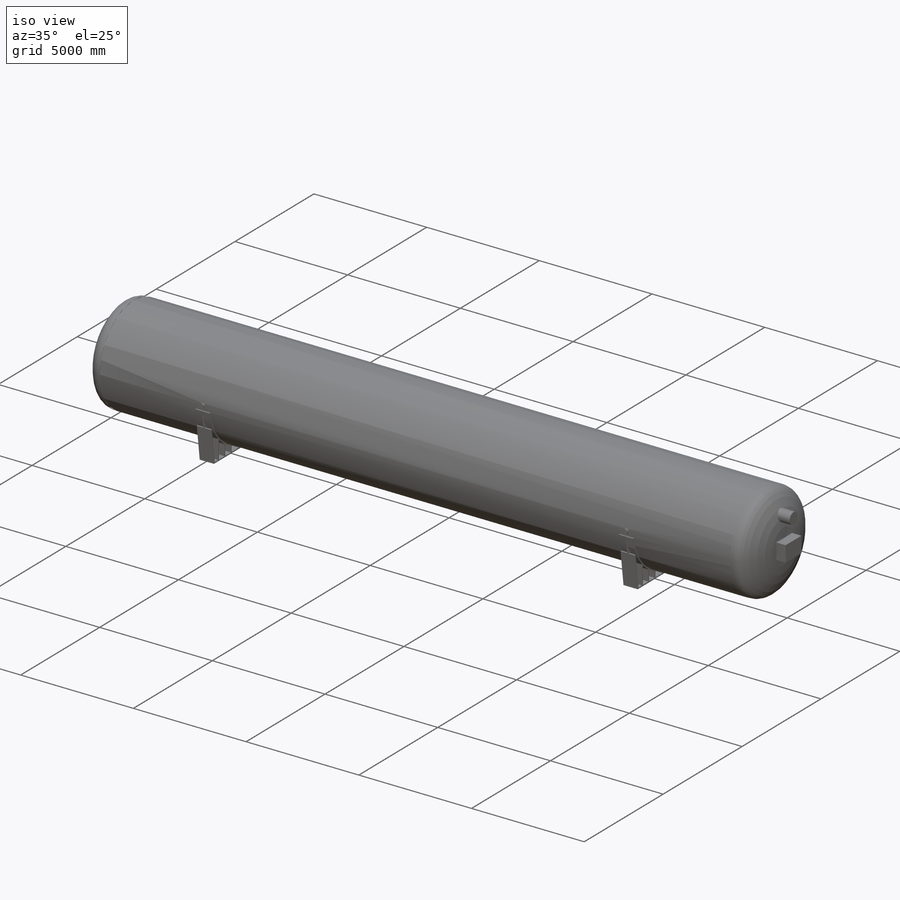
[diagram: iso view]
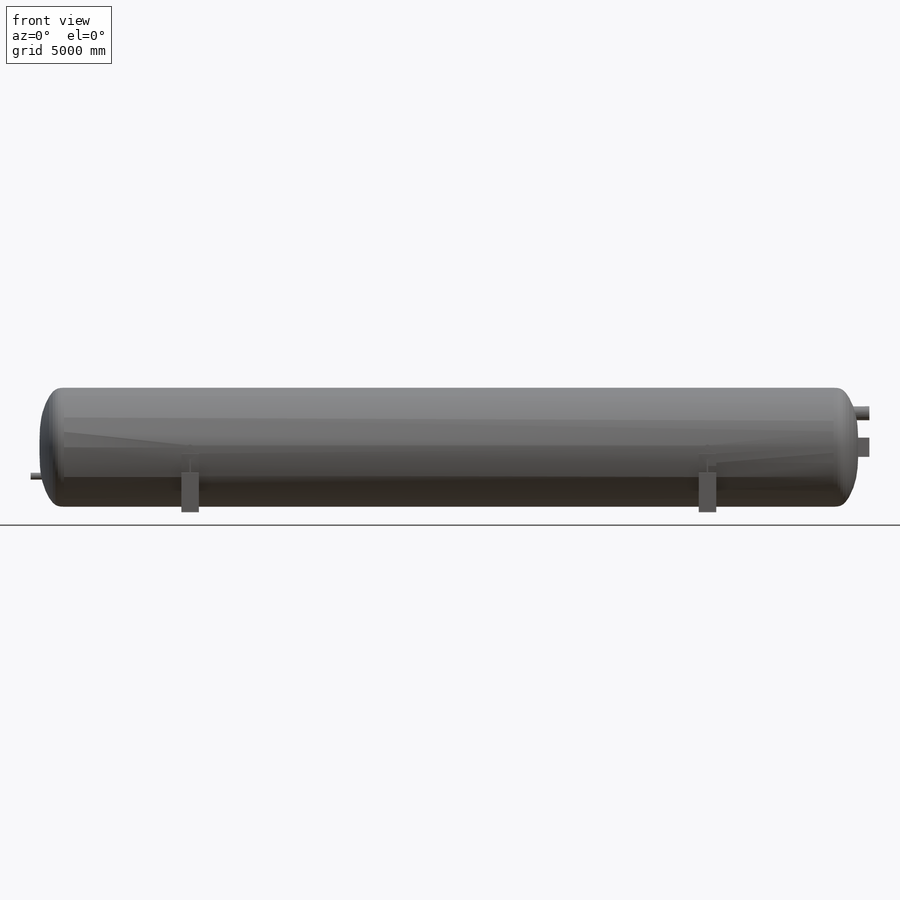
[diagram: front view]
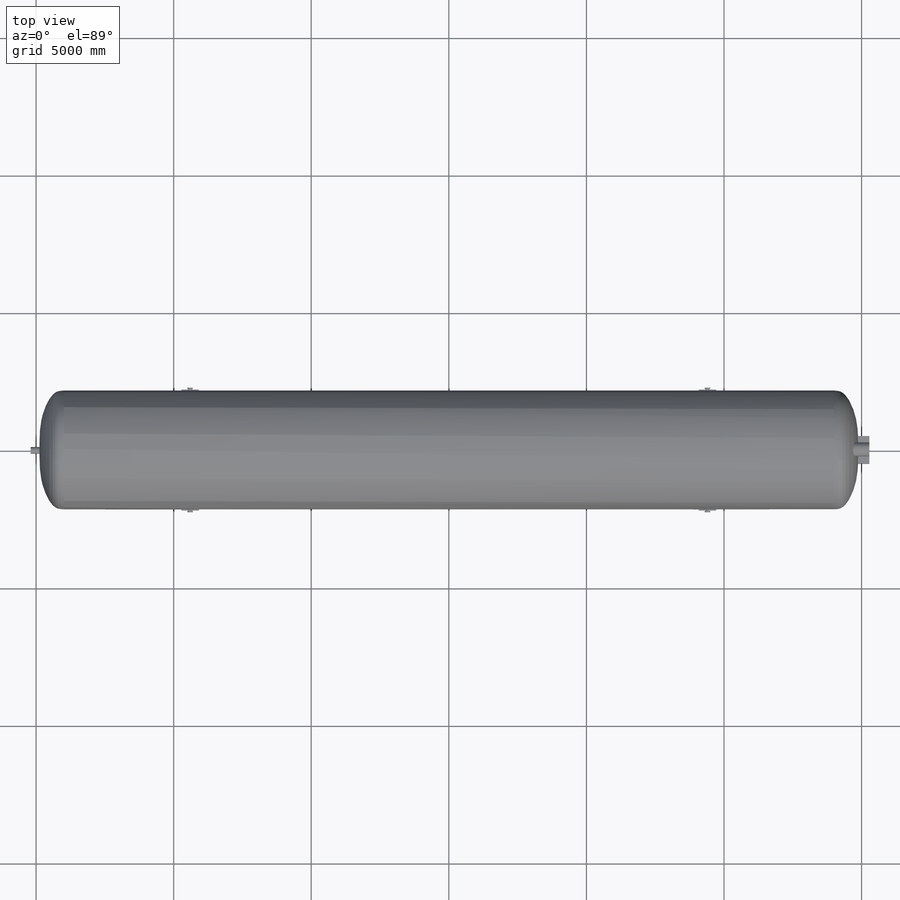
[diagram: top view]
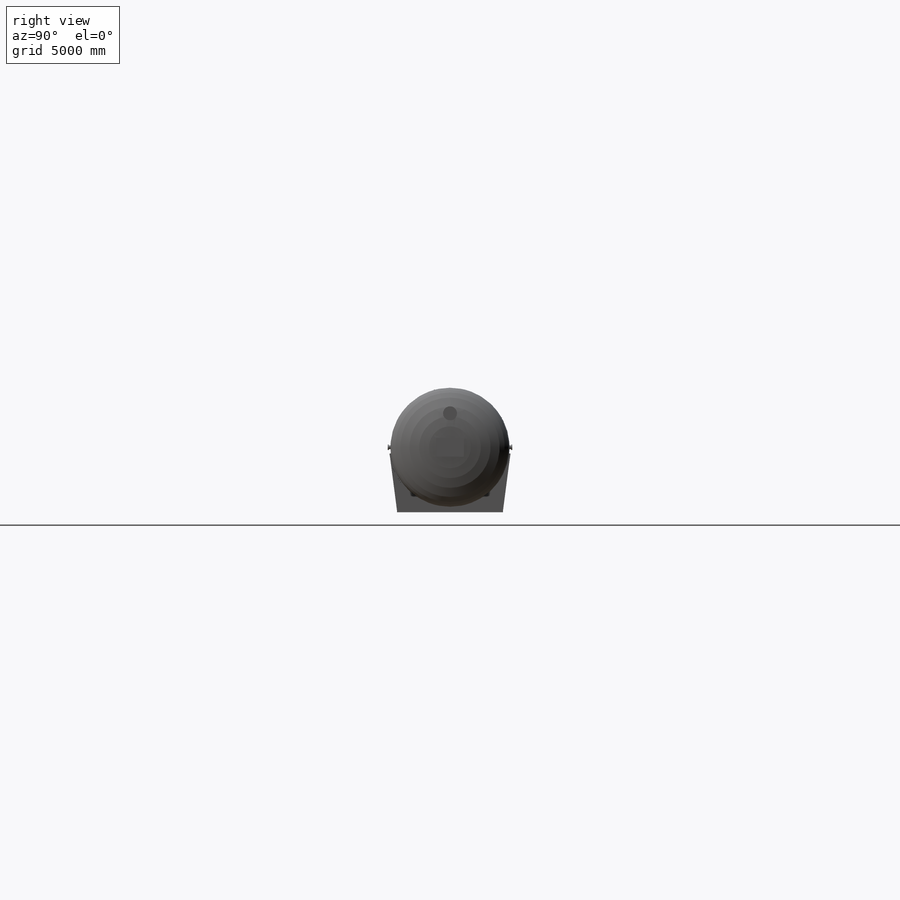
[diagram: right view]
SOLIDWORKS PART (.sldprt)
format: sldprt  version: not decoded by parser v0  size: 688,640 bytes
history: native  units: mm
features: sketch x12, extrude x10, plane x7, revolve x2, mirror x2, material x1 (+16 scaffold rows collapsed)
feature tree (50):
  scaffold x16  (default folders/planes/origin — collapsed)
  material  "Material <not specified>"
  sketch  "Sketch1"  dims[c1.D5=~3551.05805mm c1.D1=1764.0mm c1.D2=4000.0mm c1.D3=3000.0mm c2.D1=7892.0mm c2.D2=2162.0mm c2.D3=13895.0mm c3.D2=2162.0mm c3.D4=6935.0mm c3.D1=14787.0mm c4.D4=4324.0mm c4.D2=4324.0mm c4.D5=50.0mm c5.D4=50.0mm c5.D5=50.0mm c6.D4=50.0mm]
  plane  "Plane1"  Offset=1400mm
  plane  "Plane2"  Offset=1400mm
  plane  "Plane3"  Offset=9400mm
  sketch  "Sketch2"  dims[D1=50.0mm]
  sketch  "Sketch3"  dims[c1.D1=2312.0mm c1.D2=800.0mm c1.D3=1925.0mm c2.D2=200.0mm c2.D1=200.0mm c3.D2=1925.0mm c3.D1=2312.0mm c3.D3=~427.816035mm]
  sketch  "Sketch5"  dims[D1=50.0mm]
  sketch  "Sketch10"  dims[D1=2262.0mm D2=100.0mm D3=30.0mm D4=130.0mm]
  plane  "Plane5"  Offset=13985mm
  revolve  "Revolve2"  Angle=360deg
  extrude  "Extrude1"  Depth=317.5mm
  extrude  "Extrude2"  Depth=25mm
  extrude  "Extrude3"  Depth=317.5mm
  revolve  "Revolve3"  Angle=360deg
  sketch  "Sketch11"  dims[D1=50.0mm D2=50.0mm D3=50.0mm D4=50.0mm D5=300.0mm D6=800.0mm D7=1200.0mm D8=1600.0mm]
  extrude  "Extrude4"  [1 undecoded]
  sketch  "Sketch12"
  extrude  "Extrude5"  Depth=50mm
  mirror  "Mirror1"
  mirror  "Mirror2"
  plane  "Plane6"  Offset=1300mm
  sketch  "Sketch14"  dims[D1=506.0mm D3=1000.0mm D4=500.0mm D5=700.0mm D6=350.0mm D2=12.0mm]
  extrude  "Extrude7"  [1 undecoded]
  sketch  "Sketch15"  dims[D1=0.0mm]
  extrude  "Extrude8"  Depth=12mm
  plane  "Plane7"  Offset=15200mm
  sketch  "Sketch16"  dims[D1=250.0mm D3=200.0mm D2=1050.0mm D4=1050.0mm D5=500.0mm]
  extrude  "Extrude9"  [1 undecoded]
  plane  "Plane8"  Offset=800mm
  sketch  "Sketch17"  dims[D1=250.0mm D2=1050.0mm D3=600.0mm]
  extrude  "Extrude10"  [1 undecoded]
  sketch  "Sketch18"  dims[D2=150.0mm D3=150.0mm D4=150.0mm D12=50.0mm D13=50.0mm D14=50.0mm D15=100.0mm D1=1300.0mm D5=300.0mm D6=300.0mm D7=200.0mm D8=141.0mm D9=81.0mm D10=1100.0mm D11=950.0mm]
  extrude  "Extrude11"  [1 undecoded]
decode coverage: 18 of 26 modeling features carry decoded parameters
note: ~ marks probable driven/reference dimensions
note: 5 parameter values undecoded
summary: no parameter record found for 5 features
note: suppression state not decoded; provenance and decode notes live in map.json
